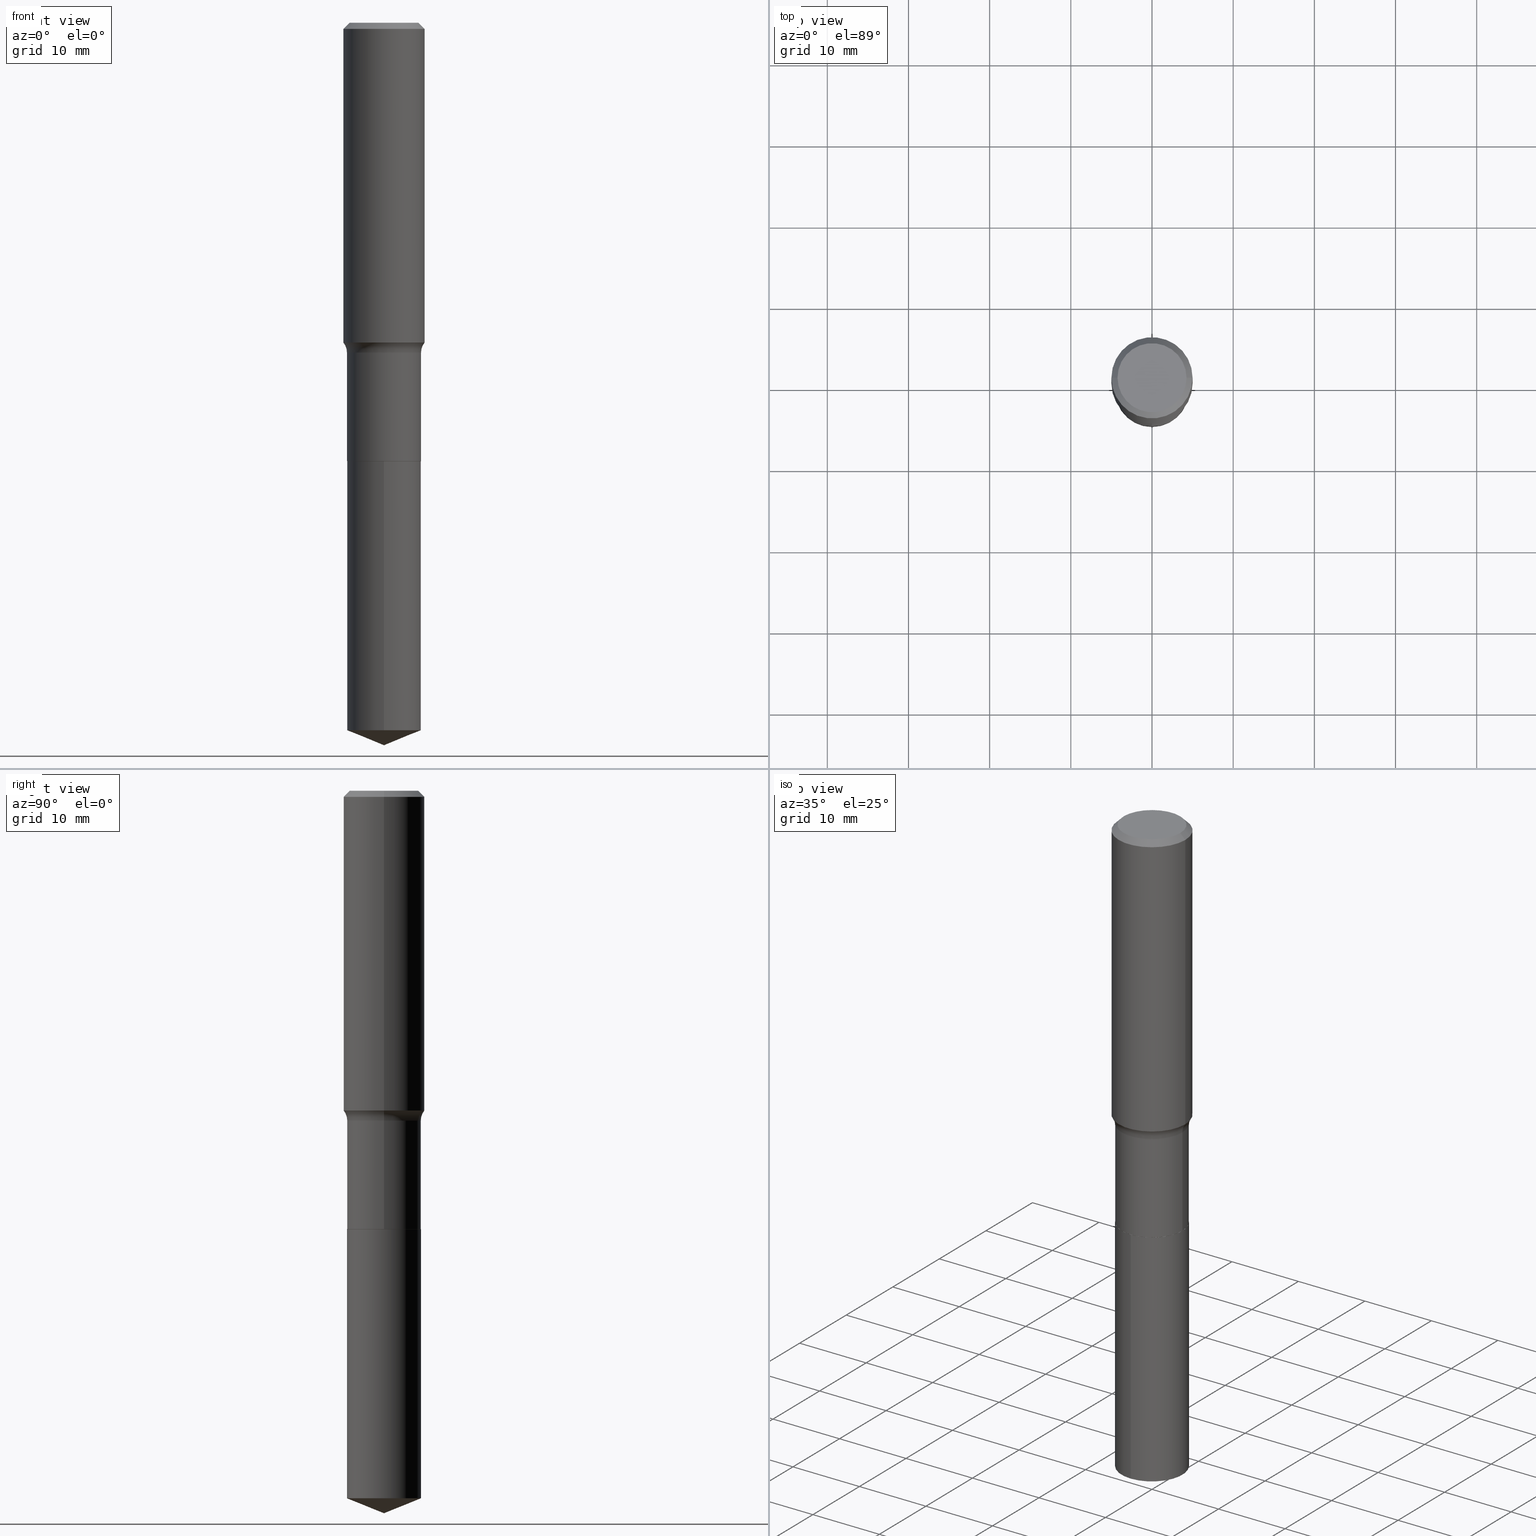
[diagram: canonical four-view strip — front | top / right | iso, engineering-drawing reading convention]
A machine part, canonical four-view strip (front | top / right | iso — engineering-drawing reading convention). The complete STEP part file that produces these views, byte-faithful:
ISO-10303-21;
HEADER;
FILE_DESCRIPTION (( 'STEP AP203' ),
    '1' );
FILE_NAME ('56819.STEP',
    '2024-04-19T14:07:22',
    ( '' ),
    ( '' ),
    'SwSTEP 2.0',
    'SolidWorks 2023',
    '' );
FILE_SCHEMA (( 'CONFIG_CONTROL_DESIGN' ));
ENDSEC;

DATA;
#1 = DIRECTION ( 'NONE',  ( -2.445468806185136597E-29, 3.491481338843145583E-15, 1.000000000000000000 ) ) ;
#2 = LINE ( 'NONE', #66, #331 ) ;
#3 = DIRECTION ( 'NONE',  ( 1.000000000000000000, -6.982962677686265922E-15, 4.876176775795935232E-29 ) ) ;
#4 = EDGE_CURVE ( 'NONE', #477, #219, #17, .T. ) ;
#5 = ORIENTED_EDGE ( 'NONE', *, *, #445, .T. ) ;
#6 = DIRECTION ( 'NONE',  ( -2.445510554620705079E-29, 3.491421552707238058E-15, 1.000000000000000000 ) ) ;
#7 = CARTESIAN_POINT ( 'NONE',  ( 3.911771902373742968E-29, -5.584973549613493521E-15, -1.599599999999999467 ) ) ;
#8 = FACE_OUTER_BOUND ( 'NONE', #333, .T. ) ;
#9 = DIRECTION ( 'NONE',  ( -1.000000000000000000, 7.105427357601001859E-15, 0.000000000000000000 ) ) ;
#10 = AXIS2_PLACEMENT_3D ( 'NONE', #336, #490, #456 ) ;
#11 = LOCAL_TIME ( 10, 7, 22.00000000000000000, #244 ) ;
#12 = COORDINATED_UNIVERSAL_TIME_OFFSET ( 5, 0, .BEHIND. ) ;
#13 = EDGE_CURVE ( 'NONE', #434, #166, #482, .T. ) ;
#14 = DATE_TIME_ROLE ( 'classification_date' ) ;
#15 = CC_DESIGN_PERSON_AND_ORGANIZATION_ASSIGNMENT ( #278, #474, ( #157 ) ) ;
#16 = CALENDAR_DATE ( 2024, 19, 4 ) ;
#17 = CIRCLE ( 'NONE', #256, 0.1796999999999999431 ) ;
#18 = DIRECTION ( 'NONE',  ( -2.445468806185136597E-29, 3.491481338843145583E-15, 1.000000000000000000 ) ) ;
#19 = LOCAL_TIME ( 10, 7, 22.00000000000000000, #429 ) ;
#20 = CIRCLE ( 'NONE', #254, 0.1796999999999999431 ) ;
#21 = DIRECTION ( 'NONE',  ( 0.000000000000000000, 0.000000000000000000, 1.000000000000000000 ) ) ;
#22 = EDGE_LOOP ( 'NONE', ( #294, #136 ) ) ;
#23 = AXIS2_PLACEMENT_3D ( 'NONE', #137, #481, #221 ) ;
#24 = CARTESIAN_POINT ( 'NONE',  ( 0.1673224999999999851, -1.300749711163072594E-15, 4.096137381456741925E-18 ) ) ;
#25 = CC_DESIGN_DATE_AND_TIME_ASSIGNMENT ( #204, #14, ( #172 ) ) ;
#26 = CARTESIAN_POINT ( 'NONE',  ( 3.911771902373742968E-29, -5.584973549613493521E-15, -1.599599999999999467 ) ) ;
#27 = EDGE_LOOP ( 'NONE', ( #368, #151, #440, #422 ) ) ;
#28 = CARTESIAN_POINT ( 'NONE',  ( 0.1968500000000001360, -1.374596203102542594E-15, 9.598753983154306463E-30 ) ) ;
#29 = AXIS2_PLACEMENT_3D ( 'NONE', #361, #98, #253 ) ;
#30 = DIRECTION ( 'NONE',  ( -2.445468806185136597E-29, 3.491481338843145583E-15, 1.000000000000000000 ) ) ;
#31 = EDGE_LOOP ( 'NONE', ( #323, #470, #352, #5 ) ) ;
#32 = CARTESIAN_POINT ( 'NONE',  ( -0.1968500000000001360, 1.398703375343758182E-15, -9.682923725166790684E-30 ) ) ;
#33 = LINE ( 'NONE', #409, #103 ) ;
#34 = CARTESIAN_POINT ( 'NONE',  ( 5.198822135068982087E-29, -7.422540178246643119E-15, -2.125899999999999679 ) ) ;
#35 = EDGE_LOOP ( 'NONE', ( #53, #87, #393, #448 ) ) ;
#36 = CARTESIAN_POINT ( 'NONE',  ( -0.1791999999999999982, -6.146598368590432200E-15, -2.125899999999999679 ) ) ;
#37 = ADVANCED_FACE ( 'NONE', ( #459 ), #74, .T. ) ;
#38 = CONICAL_SURFACE ( 'NONE', #315, 0.1791999999999999982, 0.7853981633975507526 ) ;
#39 = AXIS2_PLACEMENT_3D ( 'NONE', #177, #148, #235 ) ;
#40 = EDGE_CURVE ( 'NONE', #434, #133, #105, .T. ) ;
#41 = EDGE_CURVE ( 'NONE', #219, #477, #20, .T. ) ;
#42 = VERTEX_POINT ( 'NONE', #389 ) ;
#43 = DIRECTION ( 'NONE',  ( 1.000000000000000000, -6.982962677686265922E-15, 4.876176775795935793E-29 ) ) ;
#44 = CARTESIAN_POINT ( 'NONE',  ( 0.1968500000000002470, -6.789191276652996447E-15, -1.550801664987419004 ) ) ;
#45 = ADVANCED_FACE ( 'NONE', ( #112 ), #273, .F. ) ;
#46 = EDGE_LOOP ( 'NONE', ( #63, #270 ) ) ;
#47 = DIRECTION ( 'NONE',  ( 2.445510554620704519E-29, -3.491421552707238452E-15, -1.000000000000000000 ) ) ;
#48 = CALENDAR_DATE ( 2024, 19, 4 ) ;
#49 = VERTEX_POINT ( 'NONE', #491 ) ;
#50 = DIRECTION ( 'NONE',  ( -2.445468806185136597E-29, 3.491481338843145583E-15, 1.000000000000000000 ) ) ;
#51 = APPROVAL_ROLE ( '' ) ;
#52 = AXIS2_PLACEMENT_3D ( 'NONE', #231, #18, #432 ) ;
#53 = ORIENTED_EDGE ( 'NONE', *, *, #330, .F. ) ;
#54 = CALENDAR_DATE ( 2024, 19, 4 ) ;
#55 = EDGE_LOOP ( 'NONE', ( #115, #223, #322, #57 ) ) ;
#56 = PRODUCT ( '56819', '56819', '', ( #428 ) ) ;
#57 = ORIENTED_EDGE ( 'NONE', *, *, #288, .F. ) ;
#58 = FACE_OUTER_BOUND ( 'NONE', #314, .T. ) ;
#59 = PERSON_AND_ORGANIZATION ( #335, #317 ) ;
#60 = VECTOR ( 'NONE', #384, 39.37007874015748143 ) ;
#61 = EDGE_CURVE ( 'NONE', #442, #219, #485, .T. ) ;
#62 = CARTESIAN_POINT ( 'NONE',  ( 0.1796999999999999986, -8.675632830757443346E-15, -2.125399999999999956 ) ) ;
#63 = ORIENTED_EDGE ( 'NONE', *, *, #176, .T. ) ;
#64 = VECTOR ( 'NONE', #465, 39.37007874015748854 ) ;
#65 = CONICAL_SURFACE ( 'NONE', #383, 97.44436430772901758, 1.186823891356147076 ) ;
#66 = CARTESIAN_POINT ( 'NONE',  ( 0.1968500000000000527, -1.453583746094018101E-15, -0.02952750000000022024 ) ) ;
#67 = ORIENTED_EDGE ( 'NONE', *, *, #380, .T. ) ;
#68 = ADVANCED_FACE ( 'NONE', ( #443 ), #38, .T. ) ;
#69 = DIRECTION ( 'NONE',  ( -1.000000000000000000, 6.982962677686266711E-15, 0.000000000000000000 ) ) ;
#70 = EDGE_CURVE ( 'NONE', #182, #42, #2, .T. ) ;
#71 = CC_DESIGN_SECURITY_CLASSIFICATION ( #172, ( #297 ) ) ;
#72 = ORIENTED_EDGE ( 'NONE', *, *, #404, .F. ) ;
#73 = CARTESIAN_POINT ( 'NONE',  ( -0.1796999999999999431, -5.226038697434457346E-15, -1.599599999999999467 ) ) ;
#74 = CYLINDRICAL_SURFACE ( 'NONE', #385, 0.1796999999999999986 ) ;
#75 = DIRECTION ( 'NONE',  ( 1.000000000000000000, -6.982962677686264344E-15, 0.000000000000000000 ) ) ;
#76 = EDGE_LOOP ( 'NONE', ( #413, #308 ) ) ;
#77 = DIRECTION ( 'NONE',  ( 1.000000000000000000, -6.982962677686264344E-15, 0.000000000000000000 ) ) ;
#78 = ORIENTED_EDGE ( 'NONE', *, *, #116, .F. ) ;
#79 = EDGE_CURVE ( 'NONE', #182, #49, #447, .T. ) ;
#80 = MANIFOLD_SOLID_BREP ( 'Body-Move/Copy2[1]', #473 ) ;
#81 = CYLINDRICAL_SURFACE ( 'NONE', #52, 0.1968500000000001360 ) ;
#82 = DIRECTION ( 'NONE',  ( 0.7071067811865454633, -7.319954787623246579E-15, -0.7071067811865493491 ) ) ;
#83 = AXIS2_PLACEMENT_3D ( 'NONE', #386, #337, #305 ) ;
#84 = ORIENTED_EDGE ( 'NONE', *, *, #41, .T. ) ;
#85 = DIRECTION ( 'NONE',  ( 1.000000000000000000, -6.982962677686267499E-15, 0.000000000000000000 ) ) ;
#86 = DATE_AND_TIME ( #168, #134 ) ;
#87 = ORIENTED_EDGE ( 'NONE', *, *, #116, .T. ) ;
#88 = PERSON_AND_ORGANIZATION ( #335, #317 ) ;
#89 = ORIENTED_EDGE ( 'NONE', *, *, #140, .F. ) ;
#90 = DIRECTION ( 'NONE',  ( -1.000000000000000000, 6.982962677686266711E-15, 0.000000000000000000 ) ) ;
#91 = AXIS2_PLACEMENT_3D ( 'NONE', #203, #394, #156 ) ;
#92 = EDGE_LOOP ( 'NONE', ( #78, #252, #84, #353 ) ) ;
#93 = COORDINATED_UNIVERSAL_TIME_OFFSET ( 5, 0, .BEHIND. ) ;
#94 = CARTESIAN_POINT ( 'NONE',  ( 3.792437096306705787E-29, -5.414595073550452472E-15, -1.550801664987419004 ) ) ;
#95 = EDGE_LOOP ( 'NONE', ( #388, #262, #480, #460 ) ) ;
#96 = AXIS2_PLACEMENT_3D ( 'NONE', #152, #450, #371 ) ;
#97 = EDGE_CURVE ( 'NONE', #133, #382, #266, .T. ) ;
#98 = DIRECTION ( 'NONE',  ( -2.445468806185136597E-29, 3.491481338843145583E-15, 1.000000000000000000 ) ) ;
#99 = MANIFOLD_SOLID_BREP ( 'Body-Move/Copy2[2]', #265 ) ;
#100 = EDGE_CURVE ( 'NONE', #106, #442, #201, .T. ) ;
#101 = CYLINDRICAL_SURFACE ( 'NONE', #358, 0.1796999999999999986 ) ;
#102 = DIRECTION ( 'NONE',  ( 1.000000000000000000, -6.982962677686264344E-15, 0.000000000000000000 ) ) ;
#103 = VECTOR ( 'NONE', #181, 39.37007874015748854 ) ;
#104 = CC_DESIGN_APPROVAL ( #402, ( #297 ) ) ;
#105 = CIRCLE ( 'NONE', #360, 0.1796999999999999986 ) ;
#106 = VERTEX_POINT ( 'NONE', #44 ) ;
#107 = LINE ( 'NONE', #32, #60 ) ;
#108 = DIRECTION ( 'NONE',  ( -2.445510554620705079E-29, 3.491421552707238058E-15, 1.000000000000000000 ) ) ;
#109 = VERTEX_POINT ( 'NONE', #346 ) ;
#110 = DIRECTION ( 'NONE',  ( -2.445468806185136877E-29, 3.491481338843145188E-15, 1.000000000000000000 ) ) ;
#111 = AXIS2_PLACEMENT_3D ( 'NONE', #275, #424, #77 ) ;
#112 = FACE_OUTER_BOUND ( 'NONE', #22, .T. ) ;
#113 = CARTESIAN_POINT ( 'NONE',  ( -8.771120741596703317E-28, 1.252238223672896506E-13, 35.86617874015747987 ) ) ;
#114 = EDGE_CURVE ( 'NONE', #109, #133, #153, .T. ) ;
#115 = ORIENTED_EDGE ( 'NONE', *, *, #79, .F. ) ;
#116 = EDGE_CURVE ( 'NONE', #442, #106, #296, .T. ) ;
#117 = CARTESIAN_POINT ( 'NONE',  ( -0.1796999999999999986, -5.226038697434456558E-15, -2.125399999999999956 ) ) ;
#118 =( CONVERSION_BASED_UNIT ( 'INCH', #149 ) LENGTH_UNIT ( ) NAMED_UNIT ( #208 ) );
#119 = DIRECTION ( 'NONE',  ( 1.000000000000000000, -6.982962677686265922E-15, 4.883557194083112901E-29 ) ) ;
#120 = CARTESIAN_POINT ( 'NONE',  ( 5.198822135068982087E-29, -7.422540178246643119E-15, -2.125899999999999679 ) ) ;
#121 = CARTESIAN_POINT ( 'NONE',  ( -8.771120741596703317E-28, 1.252238223672896506E-13, 35.86617874015747987 ) ) ;
#122 = PLANE ( 'NONE',  #96 ) ;
#123 = CIRCLE ( 'NONE', #211, 0.1968500000000000527 ) ;
#124 = DIRECTION ( 'NONE',  ( -2.445468806185136597E-29, 3.491481338843145583E-15, 1.000000000000000000 ) ) ;
#125 = CIRCLE ( 'NONE', #472, 0.1968500000000000527 ) ;
#126 =( NAMED_UNIT ( * ) SI_UNIT ( $, .STERADIAN. ) SOLID_ANGLE_UNIT ( ) );
#127 = ORIENTED_EDGE ( 'NONE', *, *, #4, .T. ) ;
#128 = LINE ( 'NONE', #419, #338 ) ;
#129 = DIRECTION ( 'NONE',  ( -2.445468806185136597E-29, 3.491481338843145583E-15, 1.000000000000000000 ) ) ;
#130 = PERSON_AND_ORGANIZATION_ROLE ( 'design_supplier' ) ;
#131 = ORIENTED_EDGE ( 'NONE', *, *, #40, .T. ) ;
#132 = ADVANCED_FACE ( 'NONE', ( #58 ), #365, .F. ) ;
#133 = VERTEX_POINT ( 'NONE', #299 ) ;
#134 = LOCAL_TIME ( 10, 7, 22.00000000000000000, #12 ) ;
#135 = EDGE_LOOP ( 'NONE', ( #72, #241, #492, #162 ) ) ;
#136 = ORIENTED_EDGE ( 'NONE', *, *, #196, .T. ) ;
#137 = CARTESIAN_POINT ( 'NONE',  ( 0.2576999999999998736, -7.384483031653244086E-15, -1.599599999999999467 ) ) ;
#138 = DIRECTION ( 'NONE',  ( -6.982962677686265922E-15, -1.000000000000000000, 3.040454083098790380E-15 ) ) ;
#139 = CARTESIAN_POINT ( 'NONE',  ( 1.276845296160951695E-15, 0.1796999999999925879, -2.125900000000000567 ) ) ;
#140 = EDGE_CURVE ( 'NONE', #249, #169, #295, .T. ) ;
#141 = CIRCLE ( 'NONE', #478, 0.1796999999999999986 ) ;
#142 = APPROVAL_PERSON_ORGANIZATION ( #399, #369, #51 ) ;
#143 = AXIS2_PLACEMENT_3D ( 'NONE', #113, #267, #457 ) ;
#144 = AXIS2_PLACEMENT_3D ( 'NONE', #276, #47, #199 ) ;
#145 = CARTESIAN_POINT ( 'NONE',  ( 5.197599400665889285E-29, -7.420794437577220826E-15, -2.125399999999999956 ) ) ;
#146 = FACE_OUTER_BOUND ( 'NONE', #301, .T. ) ;
#147 = CARTESIAN_POINT ( 'NONE',  ( 5.197599400665889285E-29, -7.420794437577220826E-15, -2.125399999999999956 ) ) ;
#148 = DIRECTION ( 'NONE',  ( -2.445468806185136597E-29, 3.491481338843145583E-15, 1.000000000000000000 ) ) ;
#149 = LENGTH_MEASURE_WITH_UNIT ( LENGTH_MEASURE( 0.02539999999999999897 ), #192 );
#150 = CARTESIAN_POINT ( 'NONE',  ( 5.198822135068982087E-29, -7.422540178246643119E-15, -2.125899999999999679 ) ) ;
#151 = ORIENTED_EDGE ( 'NONE', *, *, #404, .T. ) ;
#152 = CARTESIAN_POINT ( 'NONE',  ( -5.008488096090108951E-47, 7.150793614331948590E-33, 2.048068690724054183E-18 ) ) ;
#153 = LINE ( 'NONE', #312, #216 ) ;
#154 = ORIENTED_EDGE ( 'NONE', *, *, #155, .T. ) ;
#155 = EDGE_CURVE ( 'NONE', #106, #477, #328, .T. ) ;
#156 = DIRECTION ( 'NONE',  ( -6.982962677686265922E-15, -1.000000000000000000, 3.040454083098790380E-15 ) ) ;
#157 = PRODUCT_DEFINITION ( 'UNKNOWN', '', #297, #214 ) ;
#158 = CONICAL_SURFACE ( 'NONE', #405, 0.1968500000000000527, 0.7853981633974456145 ) ;
#159 = AXIS2_PLACEMENT_3D ( 'NONE', #348, #21, #248 ) ;
#160 = CARTESIAN_POINT ( 'NONE',  ( 7.220858017463216492E-31, -1.030947152326917595E-16, -0.02952750000000022024 ) ) ;
#161 = APPROVAL_DATE_TIME ( #86, #402 ) ;
#162 = ORIENTED_EDGE ( 'NONE', *, *, #41, .F. ) ;
#163 = PERSON_AND_ORGANIZATION ( #335, #317 ) ;
#164 = CYLINDRICAL_SURFACE ( 'NONE', #284, 0.1968500000000001360 ) ;
#165 = DATE_AND_TIME ( #16, #412 ) ;
#166 = VERTEX_POINT ( 'NONE', #449 ) ;
#167 = EDGE_CURVE ( 'NONE', #237, #356, #441, .T. ) ;
#168 = CALENDAR_DATE ( 2024, 19, 4 ) ;
#169 = VERTEX_POINT ( 'NONE', #62 ) ;
#170 = CC_DESIGN_PERSON_AND_ORGANIZATION_ASSIGNMENT ( #59, #390, ( #297 ) ) ;
#171 = AXIS2_PLACEMENT_3D ( 'NONE', #421, #341, #119 ) ;
#172 = SECURITY_CLASSIFICATION ( '', '', #280 ) ;
#173 = FACE_OUTER_BOUND ( 'NONE', #370, .T. ) ;
#174 = EDGE_LOOP ( 'NONE', ( #325, #363, #436, #375 ) ) ;
#175 = SHAPE_DEFINITION_REPRESENTATION ( #319, #327 ) ;
#176 = EDGE_CURVE ( 'NONE', #49, #182, #290, .T. ) ;
#177 = CARTESIAN_POINT ( 'NONE',  ( -1.001697619218021790E-46, 1.430158722866389718E-32, 4.096137381448108366E-18 ) ) ;
#178 = EDGE_CURVE ( 'NONE', #382, #166, #359, .T. ) ;
#179 = DIRECTION ( 'NONE',  ( 0.7071067811866199593, -2.468850131083015945E-15, 0.7071067811864750752 ) ) ;
#180 = AXIS2_PLACEMENT_3D ( 'NONE', #226, #334, #306 ) ;
#181 = DIRECTION ( 'NONE',  ( -0.7071067811865454633, 2.468850131082235761E-15, -0.7071067811865493491 ) ) ;
#182 = VERTEX_POINT ( 'NONE', #24 ) ;
#183 = CYLINDRICAL_SURFACE ( 'NONE', #180, 0.1796999999999999709 ) ;
#184 = FACE_OUTER_BOUND ( 'NONE', #27, .T. ) ;
#185 = DIRECTION ( 'NONE',  ( 1.000000000000000000, -6.982962677686267499E-15, 0.000000000000000000 ) ) ;
#186 = ADVANCED_FACE ( 'NONE', ( #173 ), #101, .T. ) ;
#187 = DIRECTION ( 'NONE',  ( 7.105427357601001859E-15, 1.000000000000000000, -3.491481338843145583E-15 ) ) ;
#188 = ORIENTED_EDGE ( 'NONE', *, *, #100, .F. ) ;
#189 = LINE ( 'NONE', #28, #274 ) ;
#190 = AXIS2_PLACEMENT_3D ( 'NONE', #378, #300, #43 ) ;
#191 = DIRECTION ( 'NONE',  ( -2.445468806185136597E-29, 3.491481338843145583E-15, 1.000000000000000000 ) ) ;
#192 =( LENGTH_UNIT ( ) NAMED_UNIT ( * ) SI_UNIT ( $, .METRE. ) );
#193 = ORIENTED_EDGE ( 'NONE', *, *, #13, .T. ) ;
#194 = FACE_OUTER_BOUND ( 'NONE', #46, .T. ) ;
#195 = DIRECTION ( 'NONE',  ( -2.445510554620705359E-29, 3.491421552707238452E-15, 1.000000000000000000 ) ) ;
#196 = EDGE_CURVE ( 'NONE', #166, #382, #141, .T. ) ;
#197 = EDGE_LOOP ( 'NONE', ( #67, #193, #215, #200 ) ) ;
#198 = CC_DESIGN_PERSON_AND_ORGANIZATION_ASSIGNMENT ( #313, #426, ( #56 ) ) ;
#199 = DIRECTION ( 'NONE',  ( 6.982962677686265922E-15, 1.000000000000000000, -3.491421552707238452E-15 ) ) ;
#200 = ORIENTED_EDGE ( 'NONE', *, *, #97, .F. ) ;
#201 = CIRCLE ( 'NONE', #83, 0.1968500000000002470 ) ;
#202 = APPROVAL_ROLE ( '' ) ;
#203 = CARTESIAN_POINT ( 'NONE',  ( 8.391183022523980954E-29, -1.198022960854587011E-14, -3.431296487217422531 ) ) ;
#204 = DATE_AND_TIME ( #54, #11 ) ;
#205 = EDGE_CURVE ( 'NONE', #42, #281, #123, .T. ) ;
#206 = ORIENTED_EDGE ( 'NONE', *, *, #61, .F. ) ;
#207 = PERSON_AND_ORGANIZATION ( #335, #317 ) ;
#208 = DIMENSIONAL_EXPONENTS ( 1.000000000000000000, 0.000000000000000000, 0.000000000000000000, 0.000000000000000000, 0.000000000000000000, 0.000000000000000000, 0.000000000000000000 ) ;
#209 = LINE ( 'NONE', #239, #431 ) ;
#210 = DATE_AND_TIME ( #48, #374 ) ;
#211 = AXIS2_PLACEMENT_3D ( 'NONE', #263, #224, #415 ) ;
#212 = ORIENTED_EDGE ( 'NONE', *, *, #250, .F. ) ;
#213 = EDGE_CURVE ( 'NONE', #356, #169, #261, .T. ) ;
#214 = DESIGN_CONTEXT ( 'detailed design', #427, 'design' ) ;
#215 = ORIENTED_EDGE ( 'NONE', *, *, #178, .F. ) ;
#216 = VECTOR ( 'NONE', #396, 39.37007874015748143 ) ;
#217 =( GEOMETRIC_REPRESENTATION_CONTEXT ( 3 ) GLOBAL_UNCERTAINTY_ASSIGNED_CONTEXT ( ( #293 ) ) GLOBAL_UNIT_ASSIGNED_CONTEXT ( ( #118, #467, #126 ) ) REPRESENTATION_CONTEXT ( 'NONE', 'WORKASPACE' ) );
#218 = CARTESIAN_POINT ( 'NONE',  ( -1.254838393180170060E-15, -0.1797000000000074094, -2.125899999999999235 ) ) ;
#219 = VERTEX_POINT ( 'NONE', #73 ) ;
#220 = CC_DESIGN_PERSON_AND_ORGANIZATION_ASSIGNMENT ( #88, #311, ( #172 ) ) ;
#221 = DIRECTION ( 'NONE',  ( 1.000000000000000000, -6.982962677686261977E-15, 0.000000000000000000 ) ) ;
#222 = CIRCLE ( 'NONE', #463, 0.1796999999999999986 ) ;
#223 = ORIENTED_EDGE ( 'NONE', *, *, #70, .T. ) ;
#224 = DIRECTION ( 'NONE',  ( -2.445468806185136597E-29, 3.491481338843145583E-15, 1.000000000000000000 ) ) ;
#225 = DIRECTION ( 'NONE',  ( -2.445468806185136597E-29, 3.491481338843145583E-15, 1.000000000000000000 ) ) ;
#226 = CARTESIAN_POINT ( 'NONE',  ( 0.000000000000000000, 0.000000000000000000, 0.000000000000000000 ) ) ;
#227 = DIRECTION ( 'NONE',  ( 1.000000000000000000, -6.982962677686264344E-15, 0.000000000000000000 ) ) ;
#228 = CARTESIAN_POINT ( 'NONE',  ( 0.000000000000000000, 0.000000000000000000, 0.000000000000000000 ) ) ;
#229 = DIRECTION ( 'NONE',  ( 2.445468806185136597E-29, -3.491481338843145583E-15, -1.000000000000000000 ) ) ;
#230 = CARTESIAN_POINT ( 'NONE',  ( 5.198822135068982087E-29, -7.422540178246643119E-15, -2.125899999999999679 ) ) ;
#231 = CARTESIAN_POINT ( 'NONE',  ( 0.000000000000000000, 0.000000000000000000, 0.000000000000000000 ) ) ;
#232 = VECTOR ( 'NONE', #439, 39.37007874015748143 ) ;
#233 = AXIS2_PLACEMENT_3D ( 'NONE', #230, #417, #75 ) ;
#234 = ADVANCED_FACE ( 'NONE', ( #194 ), #122, .F. ) ;
#235 = DIRECTION ( 'NONE',  ( 1.000000000000000000, -6.982962677686267499E-15, 4.876294436782262290E-29 ) ) ;
#236 = VECTOR ( 'NONE', #195, 39.37007874015748143 ) ;
#237 = VERTEX_POINT ( 'NONE', #36 ) ;
#238 = EDGE_CURVE ( 'NONE', #249, #237, #316, .T. ) ;
#239 = CARTESIAN_POINT ( 'NONE',  ( -0.1796999999999999709, 1.276845296160899827E-15, -8.839326357188064184E-30 ) ) ;
#240 = PERSON_AND_ORGANIZATION ( #335, #317 ) ;
#241 = ORIENTED_EDGE ( 'NONE', *, *, #213, .T. ) ;
#242 = DIRECTION ( 'NONE',  ( 1.000000000000000000, -6.982962677686269866E-15, 0.000000000000000000 ) ) ;
#243 = AXIS2_PLACEMENT_3D ( 'NONE', #160, #320, #90 ) ;
#244 = COORDINATED_UNIVERSAL_TIME_OFFSET ( 5, 0, .BEHIND. ) ;
#245 = APPROVAL ( #469, 'UNSPECIFIED' ) ;
#246 = APPROVAL_STATUS ( 'not_yet_approved' ) ;
#247 = FACE_OUTER_BOUND ( 'NONE', #95, .T. ) ;
#248 = DIRECTION ( 'NONE',  ( 1.000000000000000000, 0.000000000000000000, 0.000000000000000000 ) ) ;
#249 = VERTEX_POINT ( 'NONE', #307 ) ;
#250 = EDGE_CURVE ( 'NONE', #169, #356, #222, .T. ) ;
#251 = AXIS2_PLACEMENT_3D ( 'NONE', #94, #129, #242 ) ;
#252 = ORIENTED_EDGE ( 'NONE', *, *, #61, .T. ) ;
#253 = DIRECTION ( 'NONE',  ( 1.000000000000000000, -6.982962677686267499E-15, 4.876294436782262290E-29 ) ) ;
#254 = AXIS2_PLACEMENT_3D ( 'NONE', #26, #379, #462 ) ;
#255 = VECTOR ( 'NONE', #179, 39.37007874015748143 ) ;
#256 = AXIS2_PLACEMENT_3D ( 'NONE', #7, #124, #227 ) ;
#257 = PRODUCT_RELATED_PRODUCT_CATEGORY ( 'detail', '', ( #56 ) ) ;
#258 = DIRECTION ( 'NONE',  ( -2.445468806185136597E-29, 3.491481338843145583E-15, 1.000000000000000000 ) ) ;
#259 = FACE_OUTER_BOUND ( 'NONE', #135, .T. ) ;
#260 = CARTESIAN_POINT ( 'NONE',  ( -0.1968500000000002470, -4.015891698206693896E-15, -1.550801664987419004 ) ) ;
#261 = CIRCLE ( 'NONE', #483, 0.1796999999999999986 ) ;
#262 = ORIENTED_EDGE ( 'NONE', *, *, #330, .T. ) ;
#263 = CARTESIAN_POINT ( 'NONE',  ( 7.220858017463216492E-31, -1.030947152326917595E-16, -0.02952750000000022024 ) ) ;
#264 = EDGE_CURVE ( 'NONE', #106, #42, #189, .T. ) ;
#265 = CLOSED_SHELL ( 'NONE', ( #351, #372, #395, #362, #444, #271, #132, #367, #321, #234, #286, #68 ) ) ;
#266 = LINE ( 'NONE', #218, #410 ) ;
#267 = DIRECTION ( 'NONE',  ( -2.445510554620705079E-29, 3.491421552707238058E-15, 1.000000000000000000 ) ) ;
#268 = ORIENTED_EDGE ( 'NONE', *, *, #114, .F. ) ;
#269 = FACE_OUTER_BOUND ( 'NONE', #35, .T. ) ;
#270 = ORIENTED_EDGE ( 'NONE', *, *, #79, .T. ) ;
#271 = ADVANCED_FACE ( 'NONE', ( #259 ), #183, .T. ) ;
#272 = FACE_OUTER_BOUND ( 'NONE', #92, .T. ) ;
#273 = PLANE ( 'NONE',  #144 ) ;
#274 = VECTOR ( 'NONE', #110, 39.37007874015748143 ) ;
#275 = CARTESIAN_POINT ( 'NONE',  ( 5.198822135068982087E-29, -7.422540178246643119E-15, -2.125899999999999679 ) ) ;
#276 = CARTESIAN_POINT ( 'NONE',  ( 5.198822135068982087E-29, -7.422540178246643119E-15, -2.125899999999999679 ) ) ;
#277 = AXIS2_PLACEMENT_3D ( 'NONE', #347, #187, #9 ) ;
#278 = PERSON_AND_ORGANIZATION ( #335, #317 ) ;
#279 = APPLICATION_CONTEXT ( 'configuration controlled 3d designs of mechanical parts and assemblies' ) ;
#280 = SECURITY_CLASSIFICATION_LEVEL ( 'unclassified' ) ;
#281 = VERTEX_POINT ( 'NONE', #304 ) ;
#282 = FACE_OUTER_BOUND ( 'NONE', #55, .T. ) ;
#283 = APPLICATION_PROTOCOL_DEFINITION ( 'international standard', 'config_control_design', 1994, #427 ) ;
#284 = AXIS2_PLACEMENT_3D ( 'NONE', #398, #50, #476 ) ;
#285 = DATE_AND_TIME ( #392, #19 ) ;
#286 = ADVANCED_FACE ( 'NONE', ( #458 ), #332, .F. ) ;
#287 = APPLICATION_PROTOCOL_DEFINITION ( 'international standard', 'config_control_design', 1994, #279 ) ;
#288 = EDGE_CURVE ( 'NONE', #49, #281, #33, .T. ) ;
#289 = CARTESIAN_POINT ( 'NONE',  ( 3.911771902373742968E-29, -5.584973549613493521E-15, -1.599599999999999467 ) ) ;
#290 = CIRCLE ( 'NONE', #29, 0.1673224999999999851 ) ;
#291 = CONICAL_SURFACE ( 'NONE', #143, 97.44436430772901758, 1.186823891356147076 ) ;
#292 = ORIENTED_EDGE ( 'NONE', *, *, #196, .F. ) ;
#293 = UNCERTAINTY_MEASURE_WITH_UNIT (LENGTH_MEASURE( 1.000000000000000082E-05 ), #118, 'distance_accuracy_value', 'NONE');
#294 = ORIENTED_EDGE ( 'NONE', *, *, #178, .T. ) ;
#295 = LINE ( 'NONE', #479, #255 ) ;
#296 = CIRCLE ( 'NONE', #251, 0.1968500000000002470 ) ;
#297 = PRODUCT_DEFINITION_FORMATION_WITH_SPECIFIED_SOURCE ( 'ANY', '', #56, .NOT_KNOWN. ) ;
#298 = ORIENTED_EDGE ( 'NONE', *, *, #13, .F. ) ;
#299 = CARTESIAN_POINT ( 'NONE',  ( -1.254838393180137914E-15, -0.1797000000000119613, -3.431296487217422087 ) ) ;
#300 = DIRECTION ( 'NONE',  ( -2.438088387897960049E-29, 3.491481338843145188E-15, 1.000000000000000000 ) ) ;
#301 = EDGE_LOOP ( 'NONE', ( #451, #423, #212, #89 ) ) ;
#302 = DIRECTION ( 'NONE',  ( -2.445510554620705079E-29, 3.491421552707238058E-15, 1.000000000000000000 ) ) ;
#303 = DIRECTION ( 'NONE',  ( -6.982962677686265922E-15, -1.000000000000000000, 3.040454083098790380E-15 ) ) ;
#304 = CARTESIAN_POINT ( 'NONE',  ( -0.1968500000000000527, -1.360141519047813700E-15, -0.02952750000000022024 ) ) ;
#305 = DIRECTION ( 'NONE',  ( 1.000000000000000000, -6.982962677686269866E-15, 0.000000000000000000 ) ) ;
#306 = DIRECTION ( 'NONE',  ( 1.000000000000000000, -6.982962677686265922E-15, 4.876176775795935232E-29 ) ) ;
#307 = CARTESIAN_POINT ( 'NONE',  ( 0.1791999999999999982, -8.673887090088021053E-15, -2.125899999999999679 ) ) ;
#308 = ORIENTED_EDGE ( 'NONE', *, *, #468, .F. ) ;
#309 = DIRECTION ( 'NONE',  ( -2.445468806185136877E-29, 3.491481338843145188E-15, 1.000000000000000000 ) ) ;
#310 = CC_DESIGN_APPROVAL ( #369, ( #157 ) ) ;
#311 = PERSON_AND_ORGANIZATION_ROLE ( 'classification_officer' ) ;
#312 = CARTESIAN_POINT ( 'NONE',  ( 8.568646926337138568E-29, -1.223384617722354142E-14, -3.503899999999999793 ) ) ;
#313 = PERSON_AND_ORGANIZATION ( #335, #317 ) ;
#314 = EDGE_LOOP ( 'NONE', ( #206, #188, #154, #127 ) ) ;
#315 = AXIS2_PLACEMENT_3D ( 'NONE', #34, #191, #102 ) ;
#316 = CIRCLE ( 'NONE', #111, 0.1791999999999999982 ) ;
#317 = ORGANIZATION ( 'UNSPECIFIED', 'UNSPECIFIED', '' ) ;
#318 = APPROVAL_DATE_TIME ( #165, #245 ) ;
#319 = PRODUCT_DEFINITION_SHAPE ( 'NONE', 'NONE',  #157 ) ;
#320 = DIRECTION ( 'NONE',  ( 2.445468806185136597E-29, -3.491481338843145583E-15, -1.000000000000000000 ) ) ;
#321 = ADVANCED_FACE ( 'NONE', ( #487 ), #158, .T. ) ;
#322 = ORIENTED_EDGE ( 'NONE', *, *, #205, .T. ) ;
#323 = ORIENTED_EDGE ( 'NONE', *, *, #70, .F. ) ;
#324 = CC_DESIGN_PERSON_AND_ORGANIZATION_ASSIGNMENT ( #240, #130, ( #297 ) ) ;
#325 = ORIENTED_EDGE ( 'NONE', *, *, #167, .F. ) ;
#326 = ORIENTED_EDGE ( 'NONE', *, *, #380, .F. ) ;
#327 = ADVANCED_BREP_SHAPE_REPRESENTATION ( '56819', ( #80, #99, #159 ), #217 ) ;
#328 = CIRCLE ( 'NONE', #23, 0.07799999999999995826 ) ;
#329 = APPROVAL_PERSON_ORGANIZATION ( #163, #245, #433 ) ;
#330 = EDGE_CURVE ( 'NONE', #442, #281, #107, .T. ) ;
#331 = VECTOR ( 'NONE', #82, 39.37007874015748854 ) ;
#332 = PLANE ( 'NONE',  #190 ) ;
#333 = EDGE_LOOP ( 'NONE', ( #464, #475, #418 ) ) ;
#334 = DIRECTION ( 'NONE',  ( -2.445468806185136597E-29, 3.491481338843145583E-15, 1.000000000000000000 ) ) ;
#335 = PERSON ( 'UNSPECIFIED', 'UNSPECIFIED', 'UNSPECIFIED', ('UNSPECIFIED'), ('UNSPECIFIED'), ('UNSPECIFIED') ) ;
#336 = CARTESIAN_POINT ( 'NONE',  ( 5.198822135068982087E-29, -7.422540178246643119E-15, -2.125899999999999679 ) ) ;
#337 = DIRECTION ( 'NONE',  ( -2.445468806185136597E-29, 3.491481338843145583E-15, 1.000000000000000000 ) ) ;
#338 = VECTOR ( 'NONE', #486, 39.37007874015748143 ) ;
#339 = ORIENTED_EDGE ( 'NONE', *, *, #97, .T. ) ;
#340 = AXIS2_PLACEMENT_3D ( 'NONE', #228, #225, #3 ) ;
#341 = DIRECTION ( 'NONE',  ( -2.445468806185136597E-29, 3.491481338843145583E-15, 1.000000000000000000 ) ) ;
#342 = CARTESIAN_POINT ( 'NONE',  ( 8.391183022523980954E-29, -1.198022960854587011E-14, -3.431296487217422531 ) ) ;
#343 = CYLINDRICAL_SURFACE ( 'NONE', #340, 0.1796999999999999709 ) ;
#344 = EDGE_LOOP ( 'NONE', ( #268, #401, #326 ) ) ;
#345 = CARTESIAN_POINT ( 'NONE',  ( 5.198822135068982087E-29, -7.422540178246643119E-15, -2.125899999999999679 ) ) ;
#346 = CARTESIAN_POINT ( 'NONE',  ( 8.568824432335487934E-29, -1.223359197853089063E-14, -3.503899999999999793 ) ) ;
#347 = CARTESIAN_POINT ( 'NONE',  ( -0.2576999999999998736, -3.753904919559716634E-15, -1.599599999999999467 ) ) ;
#348 = CARTESIAN_POINT ( 'NONE',  ( 0.000000000000000000, 0.000000000000000000, 0.000000000000000000 ) ) ;
#349 = CONICAL_SURFACE ( 'NONE', #243, 0.1968500000000000527, 0.7853981633974456145 ) ;
#350 = APPROVAL_DATE_TIME ( #210, #369 ) ;
#351 = ADVANCED_FACE ( 'NONE', ( #146 ), #437, .T. ) ;
#352 = ORIENTED_EDGE ( 'NONE', *, *, #288, .T. ) ;
#353 = ORIENTED_EDGE ( 'NONE', *, *, #155, .F. ) ;
#354 = CARTESIAN_POINT ( 'NONE',  ( -1.254838393180170060E-15, -0.1797000000000074094, -2.125899999999999235 ) ) ;
#355 = APPROVAL_STATUS ( 'not_yet_approved' ) ;
#356 = VERTEX_POINT ( 'NONE', #117 ) ;
#357 = LINE ( 'NONE', #435, #64 ) ;
#358 = AXIS2_PLACEMENT_3D ( 'NONE', #345, #302, #461 ) ;
#359 = CIRCLE ( 'NONE', #471, 0.1796999999999999986 ) ;
#360 = AXIS2_PLACEMENT_3D ( 'NONE', #342, #407, #453 ) ;
#361 = CARTESIAN_POINT ( 'NONE',  ( -1.001697619218021790E-46, 1.430158722866389718E-32, 4.096137381448108366E-18 ) ) ;
#362 = ADVANCED_FACE ( 'NONE', ( #272 ), #373, .F. ) ;
#363 = ORIENTED_EDGE ( 'NONE', *, *, #468, .T. ) ;
#364 = DIRECTION ( 'NONE',  ( -2.445510554620705079E-29, 3.491421552707238058E-15, 1.000000000000000000 ) ) ;
#365 = TOROIDAL_SURFACE ( 'NONE', #391, 0.2576999999999998736, 0.07799999999999995826 ) ;
#366 = DIRECTION ( 'NONE',  ( -2.445510554620705079E-29, 3.491421552707238058E-15, 1.000000000000000000 ) ) ;
#367 = ADVANCED_FACE ( 'NONE', ( #269 ), #81, .T. ) ;
#368 = ORIENTED_EDGE ( 'NONE', *, *, #250, .T. ) ;
#369 = APPROVAL ( #246, 'UNSPECIFIED' ) ;
#370 = EDGE_LOOP ( 'NONE', ( #298, #131, #339, #292 ) ) ;
#371 = DIRECTION ( 'NONE',  ( -1.000000000000000000, 6.982962677686265922E-15, -4.876176775795935793E-29 ) ) ;
#372 = ADVANCED_FACE ( 'NONE', ( #282 ), #349, .T. ) ;
#373 = TOROIDAL_SURFACE ( 'NONE', #171, 0.2576999999999998736, 0.07799999999999995826 ) ;
#374 = LOCAL_TIME ( 10, 7, 22.00000000000000000, #466 ) ;
#375 = ORIENTED_EDGE ( 'NONE', *, *, #213, .F. ) ;
#376 = DIRECTION ( 'NONE',  ( -2.445468806185136597E-29, 3.491481338843145583E-15, 1.000000000000000000 ) ) ;
#377 = DIRECTION ( 'NONE',  ( 1.000000000000000000, -6.982962677686266711E-15, 0.000000000000000000 ) ) ;
#378 = CARTESIAN_POINT ( 'NONE',  ( 5.198822135068982087E-29, -7.422540178246643119E-15, -2.125899999999999679 ) ) ;
#379 = DIRECTION ( 'NONE',  ( -2.445468806185136597E-29, 3.491481338843145583E-15, 1.000000000000000000 ) ) ;
#380 = EDGE_CURVE ( 'NONE', #133, #434, #454, .T. ) ;
#381 = CARTESIAN_POINT ( 'NONE',  ( 0.1796999999999999431, -6.839811942793715251E-15, -1.599599999999999467 ) ) ;
#382 = VERTEX_POINT ( 'NONE', #354 ) ;
#383 = AXIS2_PLACEMENT_3D ( 'NONE', #121, #108, #387 ) ;
#384 = DIRECTION ( 'NONE',  ( -2.445468806185136877E-29, 3.491481338843145188E-15, 1.000000000000000000 ) ) ;
#385 = AXIS2_PLACEMENT_3D ( 'NONE', #120, #366, #303 ) ;
#386 = CARTESIAN_POINT ( 'NONE',  ( 3.792437096306705787E-29, -5.414595073550452472E-15, -1.550801664987419004 ) ) ;
#387 = DIRECTION ( 'NONE',  ( -6.982962677686265133E-15, -1.000000000000000000, 3.498761904101806258E-15 ) ) ;
#388 = ORIENTED_EDGE ( 'NONE', *, *, #100, .T. ) ;
#389 = CARTESIAN_POINT ( 'NONE',  ( 0.1968500000000000527, -1.477690918335233688E-15, -0.02952750000000022024 ) ) ;
#390 = PERSON_AND_ORGANIZATION_ROLE ( 'creator' ) ;
#391 = AXIS2_PLACEMENT_3D ( 'NONE', #289, #258, #400 ) ;
#392 = CALENDAR_DATE ( 2024, 19, 4 ) ;
#393 = ORIENTED_EDGE ( 'NONE', *, *, #264, .T. ) ;
#394 = DIRECTION ( 'NONE',  ( -2.445510554620705079E-29, 3.491421552707238058E-15, 1.000000000000000000 ) ) ;
#395 = ADVANCED_FACE ( 'NONE', ( #247 ), #164, .T. ) ;
#396 = DIRECTION ( 'NONE',  ( -6.474490251793184940E-15, -0.9271838545667872022, 0.3746065934159125144 ) ) ;
#397 = DATE_TIME_ROLE ( 'creation_date' ) ;
#398 = CARTESIAN_POINT ( 'NONE',  ( 0.000000000000000000, 0.000000000000000000, 0.000000000000000000 ) ) ;
#399 = PERSON_AND_ORGANIZATION ( #335, #317 ) ;
#400 = DIRECTION ( 'NONE',  ( 1.000000000000000000, -6.982962677686265922E-15, 4.883557194083112901E-29 ) ) ;
#401 = ORIENTED_EDGE ( 'NONE', *, *, #414, .T. ) ;
#402 = APPROVAL ( #355, 'UNSPECIFIED' ) ;
#403 = CARTESIAN_POINT ( 'NONE',  ( 5.198822135068982087E-29, -7.422540178246643119E-15, -2.125899999999999679 ) ) ;
#404 = EDGE_CURVE ( 'NONE', #356, #219, #209, .T. ) ;
#405 = AXIS2_PLACEMENT_3D ( 'NONE', #488, #229, #69 ) ;
#406 = CC_DESIGN_APPROVAL ( #245, ( #172 ) ) ;
#407 = DIRECTION ( 'NONE',  ( -2.445510554620705079E-29, 3.491421552707238058E-15, 1.000000000000000000 ) ) ;
#408 = CARTESIAN_POINT ( 'NONE',  ( -0.1791999999999999982, -6.149247595764543401E-15, -2.125899999999999679 ) ) ;
#409 = CARTESIAN_POINT ( 'NONE',  ( -0.1968500000000000527, 1.271501487869850317E-15, -0.02952750000000022024 ) ) ;
#410 = VECTOR ( 'NONE', #416, 39.37007874015748143 ) ;
#411 = CARTESIAN_POINT ( 'NONE',  ( 7.220858017463216492E-31, -1.030947152326917595E-16, -0.02952750000000022024 ) ) ;
#412 = LOCAL_TIME ( 10, 7, 22.00000000000000000, #93 ) ;
#413 = ORIENTED_EDGE ( 'NONE', *, *, #238, .F. ) ;
#414 = EDGE_CURVE ( 'NONE', #109, #434, #357, .T. ) ;
#415 = DIRECTION ( 'NONE',  ( 1.000000000000000000, -6.982962677686266711E-15, 0.000000000000000000 ) ) ;
#416 = DIRECTION ( 'NONE',  ( -2.445510554620705359E-29, 3.491421552707238452E-15, 1.000000000000000000 ) ) ;
#417 = DIRECTION ( 'NONE',  ( -2.445468806185136597E-29, 3.491481338843145583E-15, 1.000000000000000000 ) ) ;
#418 = ORIENTED_EDGE ( 'NONE', *, *, #40, .F. ) ;
#419 = CARTESIAN_POINT ( 'NONE',  ( 0.1796999999999999709, -1.254838393180221730E-15, 8.762489666105294243E-30 ) ) ;
#420 = CC_DESIGN_DATE_AND_TIME_ASSIGNMENT ( #285, #397, ( #157 ) ) ;
#421 = CARTESIAN_POINT ( 'NONE',  ( 3.911771902373742968E-29, -5.584973549613493521E-15, -1.599599999999999467 ) ) ;
#422 = ORIENTED_EDGE ( 'NONE', *, *, #425, .F. ) ;
#423 = ORIENTED_EDGE ( 'NONE', *, *, #167, .T. ) ;
#424 = DIRECTION ( 'NONE',  ( -2.445468806185136597E-29, 3.491481338843145583E-15, 1.000000000000000000 ) ) ;
#425 = EDGE_CURVE ( 'NONE', #169, #477, #128, .T. ) ;
#426 = PERSON_AND_ORGANIZATION_ROLE ( 'design_owner' ) ;
#427 = APPLICATION_CONTEXT ( 'configuration controlled 3d designs of mechanical parts and assemblies' ) ;
#428 = MECHANICAL_CONTEXT ( 'NONE', #279, 'mechanical' ) ;
#429 = COORDINATED_UNIVERSAL_TIME_OFFSET ( 5, 0, .BEHIND. ) ;
#430 = ADVANCED_FACE ( 'NONE', ( #8 ), #65, .T. ) ;
#431 = VECTOR ( 'NONE', #309, 39.37007874015748143 ) ;
#432 = DIRECTION ( 'NONE',  ( 1.000000000000000000, -6.982962677686266711E-15, 4.876176775795935793E-29 ) ) ;
#433 = APPROVAL_ROLE ( '' ) ;
#434 = VERTEX_POINT ( 'NONE', #455 ) ;
#435 = CARTESIAN_POINT ( 'NONE',  ( 8.568825988853564616E-29, -1.223359197853089063E-14, -3.503899999999999793 ) ) ;
#436 = ORIENTED_EDGE ( 'NONE', *, *, #140, .T. ) ;
#437 = CONICAL_SURFACE ( 'NONE', #10, 0.1791999999999999982, 0.7853981633975507526 ) ;
#438 = APPROVAL_PERSON_ORGANIZATION ( #207, #402, #202 ) ;
#439 = DIRECTION ( 'NONE',  ( -0.7071067811866199593, 7.493145998870616062E-15, 0.7071067811864750752 ) ) ;
#440 = ORIENTED_EDGE ( 'NONE', *, *, #4, .F. ) ;
#441 = LINE ( 'NONE', #408, #232 ) ;
#442 = VERTEX_POINT ( 'NONE', #260 ) ;
#443 = FACE_OUTER_BOUND ( 'NONE', #174, .T. ) ;
#444 = ADVANCED_FACE ( 'NONE', ( #184 ), #343, .T. ) ;
#445 = EDGE_CURVE ( 'NONE', #281, #42, #125, .T. ) ;
#446 = ADVANCED_FACE ( 'NONE', ( #489 ), #291, .T. ) ;
#447 = CIRCLE ( 'NONE', #39, 0.1673224999999999851 ) ;
#448 = ORIENTED_EDGE ( 'NONE', *, *, #445, .F. ) ;
#449 = CARTESIAN_POINT ( 'NONE',  ( 1.276845296160984038E-15, 0.1796999999999925879, -2.125900000000000567 ) ) ;
#450 = DIRECTION ( 'NONE',  ( 2.438088387897960049E-29, -3.491481338843145188E-15, -1.000000000000000000 ) ) ;
#451 = ORIENTED_EDGE ( 'NONE', *, *, #238, .T. ) ;
#452 = DIRECTION ( 'NONE',  ( -6.982962677686265922E-15, -1.000000000000000000, 3.040454083098790380E-15 ) ) ;
#453 = DIRECTION ( 'NONE',  ( -6.982962677686265922E-15, -1.000000000000000000, 3.040454083098790380E-15 ) ) ;
#454 = CIRCLE ( 'NONE', #91, 0.1796999999999999986 ) ;
#455 = CARTESIAN_POINT ( 'NONE',  ( 1.276845296160983446E-15, 0.1796999999999880082, -3.431296487217423419 ) ) ;
#456 = DIRECTION ( 'NONE',  ( 1.000000000000000000, -6.982962677686264344E-15, 0.000000000000000000 ) ) ;
#457 = DIRECTION ( 'NONE',  ( -6.982962677686265133E-15, -1.000000000000000000, 3.498761904101806258E-15 ) ) ;
#458 = FACE_OUTER_BOUND ( 'NONE', #76, .T. ) ;
#459 = FACE_OUTER_BOUND ( 'NONE', #197, .T. ) ;
#460 = ORIENTED_EDGE ( 'NONE', *, *, #264, .F. ) ;
#461 = DIRECTION ( 'NONE',  ( -6.982962677686265922E-15, -1.000000000000000000, 3.040454083098790380E-15 ) ) ;
#462 = DIRECTION ( 'NONE',  ( 1.000000000000000000, -6.982962677686264344E-15, 0.000000000000000000 ) ) ;
#463 = AXIS2_PLACEMENT_3D ( 'NONE', #145, #376, #85 ) ;
#464 = ORIENTED_EDGE ( 'NONE', *, *, #414, .F. ) ;
#465 = DIRECTION ( 'NONE',  ( 6.588037525764796813E-15, 0.9271838545667896447, 0.3746065934159060196 ) ) ;
#466 = COORDINATED_UNIVERSAL_TIME_OFFSET ( 5, 0, .BEHIND. ) ;
#467 =( NAMED_UNIT ( * ) PLANE_ANGLE_UNIT ( ) SI_UNIT ( $, .RADIAN. ) );
#468 = EDGE_CURVE ( 'NONE', #237, #249, #484, .T. ) ;
#469 = APPROVAL_STATUS ( 'not_yet_approved' ) ;
#470 = ORIENTED_EDGE ( 'NONE', *, *, #176, .F. ) ;
#471 = AXIS2_PLACEMENT_3D ( 'NONE', #403, #364, #138 ) ;
#472 = AXIS2_PLACEMENT_3D ( 'NONE', #411, #30, #377 ) ;
#473 = CLOSED_SHELL ( 'NONE', ( #37, #446, #430, #186, #45 ) ) ;
#474 = PERSON_AND_ORGANIZATION_ROLE ( 'creator' ) ;
#475 = ORIENTED_EDGE ( 'NONE', *, *, #114, .T. ) ;
#476 = DIRECTION ( 'NONE',  ( 1.000000000000000000, -6.982962677686266711E-15, 4.876176775795935793E-29 ) ) ;
#477 = VERTEX_POINT ( 'NONE', #381 ) ;
#478 = AXIS2_PLACEMENT_3D ( 'NONE', #150, #6, #452 ) ;
#479 = CARTESIAN_POINT ( 'NONE',  ( 0.1791999999999999982, -8.673887090088021053E-15, -2.125899999999999679 ) ) ;
#480 = ORIENTED_EDGE ( 'NONE', *, *, #205, .F. ) ;
#481 = DIRECTION ( 'NONE',  ( -6.982962677686266711E-15, -1.000000000000000000, 3.491481338843145583E-15 ) ) ;
#482 = LINE ( 'NONE', #139, #236 ) ;
#483 = AXIS2_PLACEMENT_3D ( 'NONE', #147, #1, #185 ) ;
#484 = CIRCLE ( 'NONE', #233, 0.1791999999999999982 ) ;
#485 = CIRCLE ( 'NONE', #277, 0.07799999999999995826 ) ;
#486 = DIRECTION ( 'NONE',  ( -2.445468806185136877E-29, 3.491481338843145188E-15, 1.000000000000000000 ) ) ;
#487 = FACE_OUTER_BOUND ( 'NONE', #31, .T. ) ;
#488 = CARTESIAN_POINT ( 'NONE',  ( 7.220858017463216492E-31, -1.030947152326917595E-16, -0.02952750000000022024 ) ) ;
#489 = FACE_OUTER_BOUND ( 'NONE', #344, .T. ) ;
#490 = DIRECTION ( 'NONE',  ( -2.445468806185136597E-29, 3.491481338843145583E-15, 1.000000000000000000 ) ) ;
#491 = CARTESIAN_POINT ( 'NONE',  ( -0.1673224999999999851, 1.219954130253505460E-15, 4.096137381439757534E-18 ) ) ;
#492 = ORIENTED_EDGE ( 'NONE', *, *, #425, .T. ) ;
ENDSEC;
END-ISO-10303-21;
